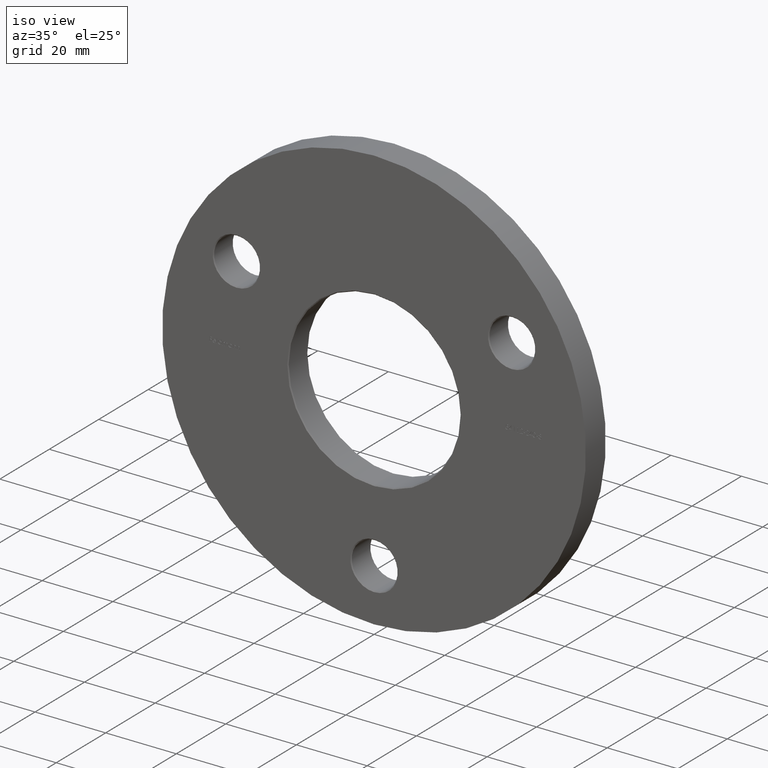
[diagram: clean part render]
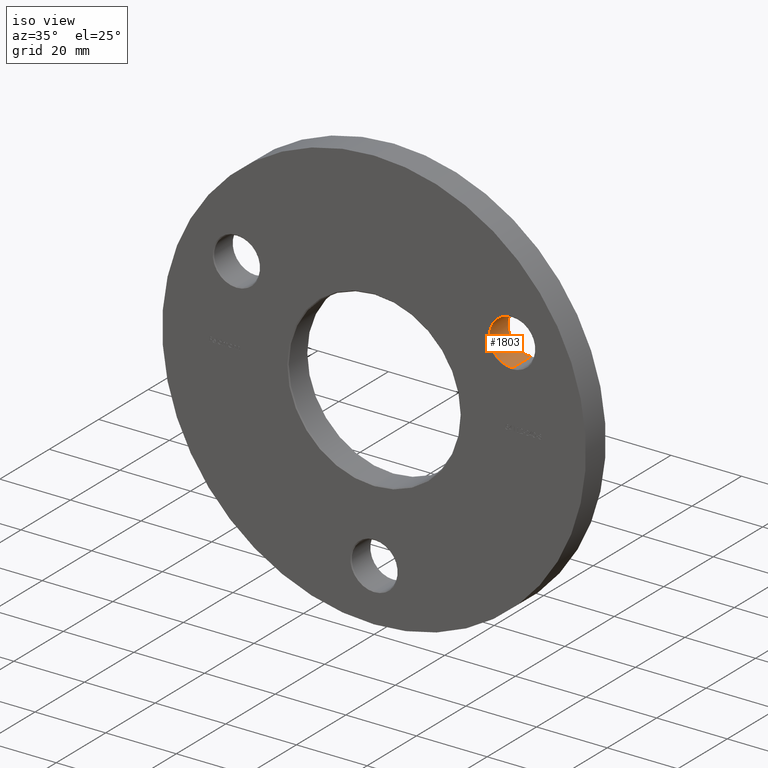
[diagram: same view with one face highlighted and labeled with its STEP entity id]
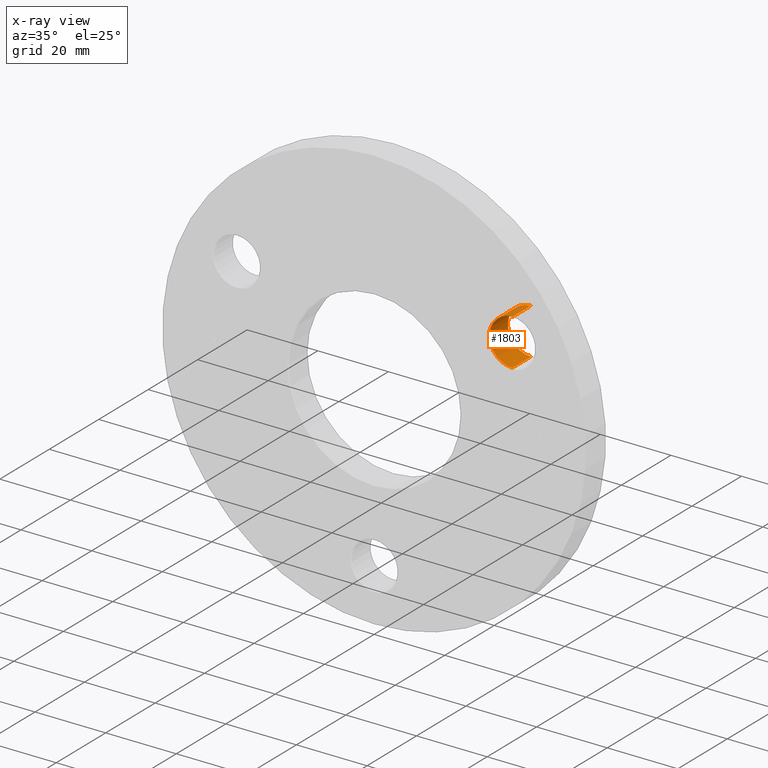
[diagram: x-ray of the same camera — body ghosted, the highlighted face saturated]
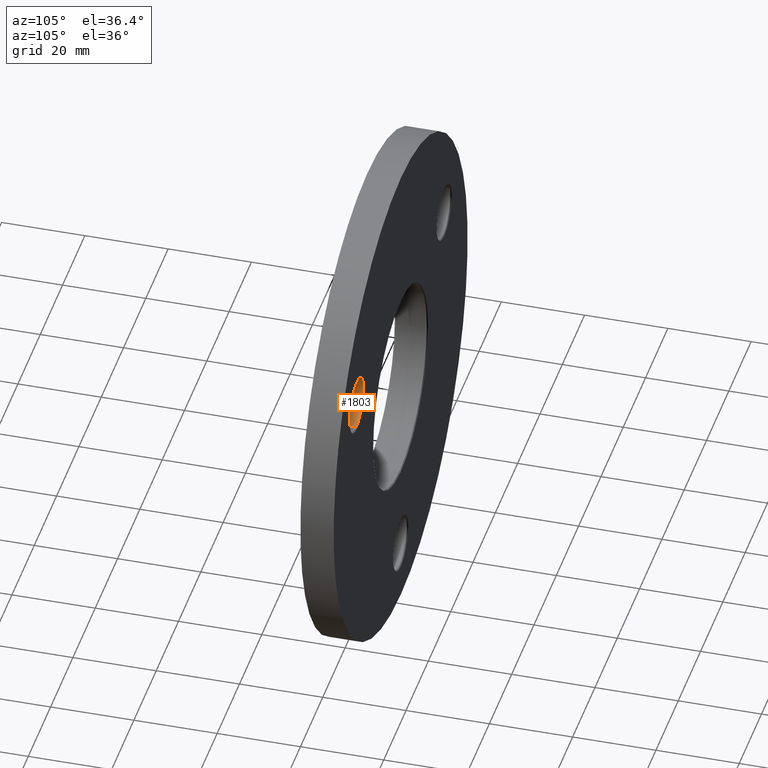
[diagram: same view with one face highlighted and labeled with its STEP entity id]
A machine part, iso view. The second image highlights one B-rep face of the part: STEP entity #1803.
The next image is the same camera in x-ray: the body ghosted, the highlighted face saturated — about 0% of this face is hidden behind the body in this view.
A second angle (auxiliary view) of the same face is appended — the face is thin or edge-on in the first view.
In plain terms, the highlighted cylindrical surface (edge-blend (fillet) strip) has radius 6.5 mm, axis along (-0, -1, -0).
Its self-contained STEP definition (entity closure, byte-faithful):
#352 = CARTESIAN_POINT ( 'NONE',  ( 38.97114317029974728, 8.000000000000000000, 16.00000000000000000 ) ) ;
#437 = AXIS2_PLACEMENT_3D ( 'NONE', #4458, #1266, #2396 ) ;
#626 = EDGE_CURVE ( 'NONE', #8616, #4803, #8323, .T. ) ;
#689 = AXIS2_PLACEMENT_3D ( 'NONE', #5333, #6268, #7355 ) ;
#1154 = CARTESIAN_POINT ( 'NONE',  ( 38.97114317029974728, 0.2499999999999993616, 22.50000000000000000 ) ) ;
#1183 = CARTESIAN_POINT ( 'NONE',  ( 38.97114317029974728, 8.000000000000000000, 28.99999999999999645 ) ) ;
#1266 = DIRECTION ( 'NONE',  ( -0.000000000000000000, -1.000000000000000000, -0.000000000000000000 ) ) ;
#1502 = VECTOR ( 'NONE', #2133, 1000.000000000000000 ) ;
#1639 = DIRECTION ( 'NONE',  ( -0.000000000000000000, -1.000000000000000000, -0.000000000000000000 ) ) ;
#1803 = ADVANCED_FACE ( 'NONE', ( #7366 ), #5750, .F. ) ;
#1826 = LINE ( 'NONE', #1183, #1502 ) ;
#1990 = VERTEX_POINT ( 'NONE', #2121 ) ;
#2121 = CARTESIAN_POINT ( 'NONE',  ( 38.97114317029974728, 7.749999999999954703, 28.99999999999999645 ) ) ;
#2133 = DIRECTION ( 'NONE',  ( -0.000000000000000000, -1.000000000000000000, -0.000000000000000000 ) ) ;
#2396 = DIRECTION ( 'NONE',  ( 0.000000000000000000, 0.000000000000000000, -1.000000000000000000 ) ) ;
#2634 = EDGE_CURVE ( 'NONE', #8616, #1990, #12489, .T. ) ;
#2652 = EDGE_CURVE ( 'NONE', #1990, #11773, #1826, .T. ) ;
#2992 = VECTOR ( 'NONE', #1639, 1000.000000000000000 ) ;
#4260 = DIRECTION ( 'NONE',  ( -0.000000000000000000, -1.000000000000000000, -0.000000000000000000 ) ) ;
#4458 = CARTESIAN_POINT ( 'NONE',  ( 38.97114317029974728, 8.000000000000000000, 22.50000000000000000 ) ) ;
#4560 = ORIENTED_EDGE ( 'NONE', *, *, #626, .F. ) ;
#4803 = VERTEX_POINT ( 'NONE', #7338 ) ;
#4857 = EDGE_LOOP ( 'NONE', ( #12645, #11576, #6606, #4560 ) ) ;
#5333 = CARTESIAN_POINT ( 'NONE',  ( 38.97114317029974728, 7.749999999999954703, 22.50000000000000000 ) ) ;
#5750 = CYLINDRICAL_SURFACE ( 'NONE', #437, 6.499999999999999112 ) ;
#6004 = AXIS2_PLACEMENT_3D ( 'NONE', #1154, #4260, #11432 ) ;
#6268 = DIRECTION ( 'NONE',  ( 0.000000000000000000, 1.000000000000000000, 0.000000000000000000 ) ) ;
#6606 = ORIENTED_EDGE ( 'NONE', *, *, #7629, .T. ) ;
#7338 = CARTESIAN_POINT ( 'NONE',  ( 38.97114317029974728, 0.2499999999999993616, 16.00000000000000000 ) ) ;
#7355 = DIRECTION ( 'NONE',  ( 0.000000000000000000, 0.000000000000000000, 1.000000000000000000 ) ) ;
#7366 = FACE_OUTER_BOUND ( 'NONE', #4857, .T. ) ;
#7629 = EDGE_CURVE ( 'NONE', #11773, #4803, #13087, .T. ) ;
#8323 = LINE ( 'NONE', #352, #2992 ) ;
#8616 = VERTEX_POINT ( 'NONE', #13052 ) ;
#11432 = DIRECTION ( 'NONE',  ( 0.000000000000000000, 0.000000000000000000, 1.000000000000000000 ) ) ;
#11576 = ORIENTED_EDGE ( 'NONE', *, *, #2652, .T. ) ;
#11579 = CARTESIAN_POINT ( 'NONE',  ( 38.97114317029974728, 0.2499999999999993616, 28.99999999999999645 ) ) ;
#11773 = VERTEX_POINT ( 'NONE', #11579 ) ;
#12489 = CIRCLE ( 'NONE', #689, 6.499999999999999112 ) ;
#12645 = ORIENTED_EDGE ( 'NONE', *, *, #2634, .T. ) ;
#13052 = CARTESIAN_POINT ( 'NONE',  ( 38.97114317029974728, 7.749999999999954703, 16.00000000000000000 ) ) ;
#13087 = CIRCLE ( 'NONE', #6004, 6.499999999999999112 ) ;